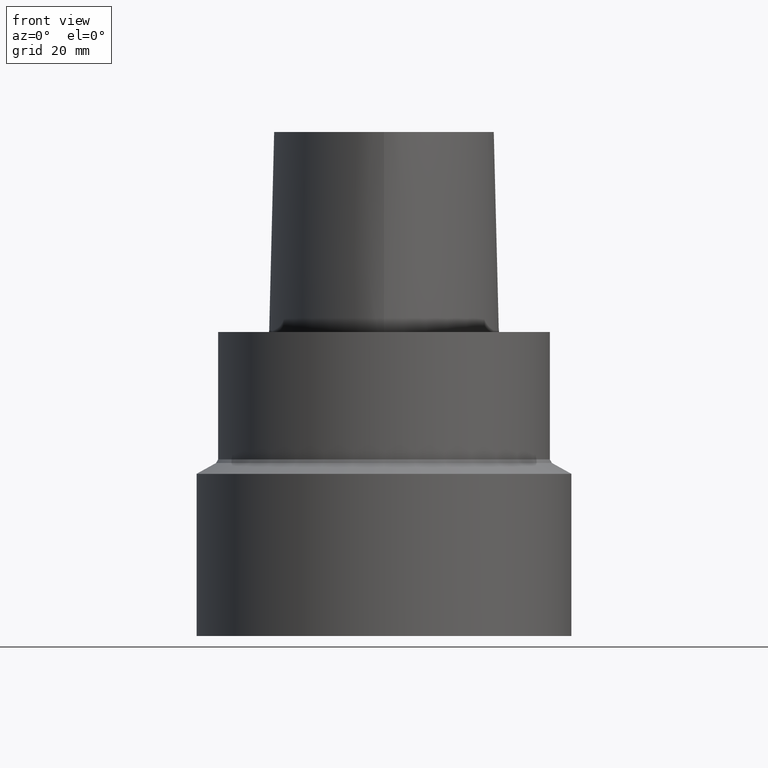
[diagram: clean part render]
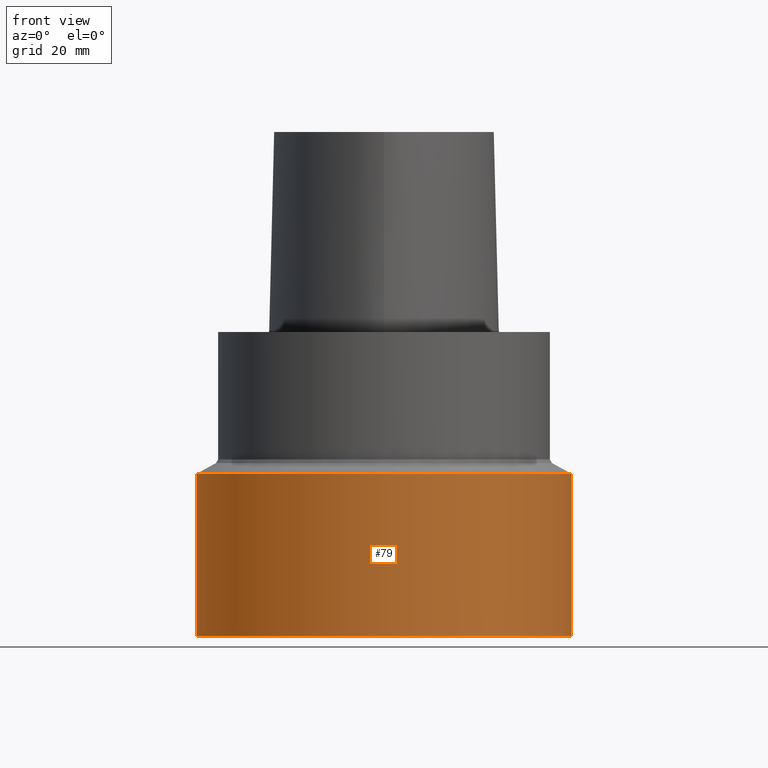
[diagram: same view with one face highlighted and labeled with its STEP entity id]
A machine part, front view. The second image highlights one B-rep face of the part: STEP entity #79.
In plain terms, the highlighted cylindrical surface (bore or boss wall) has radius 45 mm, axis along (-0, -0, 1).
Its self-contained STEP definition (entity closure, byte-faithful):
#79=ADVANCED_FACE('',(#94,#95),#96,.T.);
#94=FACE_BOUND('',#498,.T.);
#95=FACE_BOUND('',#499,.T.);
#96=CYLINDRICAL_SURFACE('',#500,45.0);
#498=EDGE_LOOP('',(#527));
#499=EDGE_LOOP('',(#528));
#500=AXIS2_PLACEMENT_3D('',#529,#530,#531);
#527=ORIENTED_EDGE('',*,*,#552,.F.);
#528=ORIENTED_EDGE('',*,*,#551,.T.);
#529=CARTESIAN_POINT('',(3.27789839564364E-015,6.55579679128727E-015,-53.5321432747113));
#530=DIRECTION('',(-6.12323399573677E-017,-1.22464679914735E-016,1.0));
#531=DIRECTION('',(-1.23259516440783E-032,1.0,1.22464679914735E-016));
#551=EDGE_CURVE('',#563,#563,#564,.T.);
#552=EDGE_CURVE('',#565,#565,#566,.T.);
#563=VERTEX_POINT('',#724);
#564=CIRCLE('',#725,45.0);
#565=VERTEX_POINT('',#726);
#566=CIRCLE('',#727,45.0);
#724=CARTESIAN_POINT('',(2.08583597439944E-015,45.0,-34.0642865494227));
#725=AXIS2_PLACEMENT_3D('',#736,#737,#738);
#726=CARTESIAN_POINT('',(4.46996081688784E-015,45.0,-73.0));
#727=AXIS2_PLACEMENT_3D('',#739,#740,#741);
#736=CARTESIAN_POINT('',(2.08583597439944E-015,4.17167194879887E-015,-34.0642865494227));
#737=DIRECTION('',(6.12323399573677E-017,1.22464679914735E-016,-1.0));
#738=DIRECTION('',(-1.23259516440783E-032,1.0,1.22464679914735E-016));
#739=CARTESIAN_POINT('',(4.46996081688784E-015,8.93992163377568E-015,-73.0));
#740=DIRECTION('',(6.12323399573677E-017,1.22464679914735E-016,-1.0));
#741=DIRECTION('',(-1.23259516440783E-032,1.0,1.22464679914735E-016));